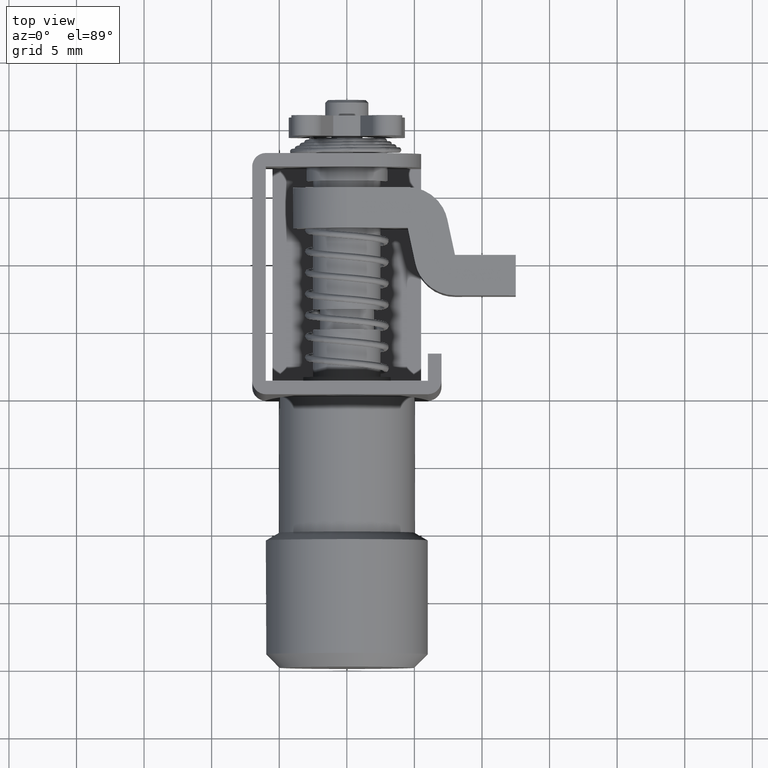
[diagram: clean part render]
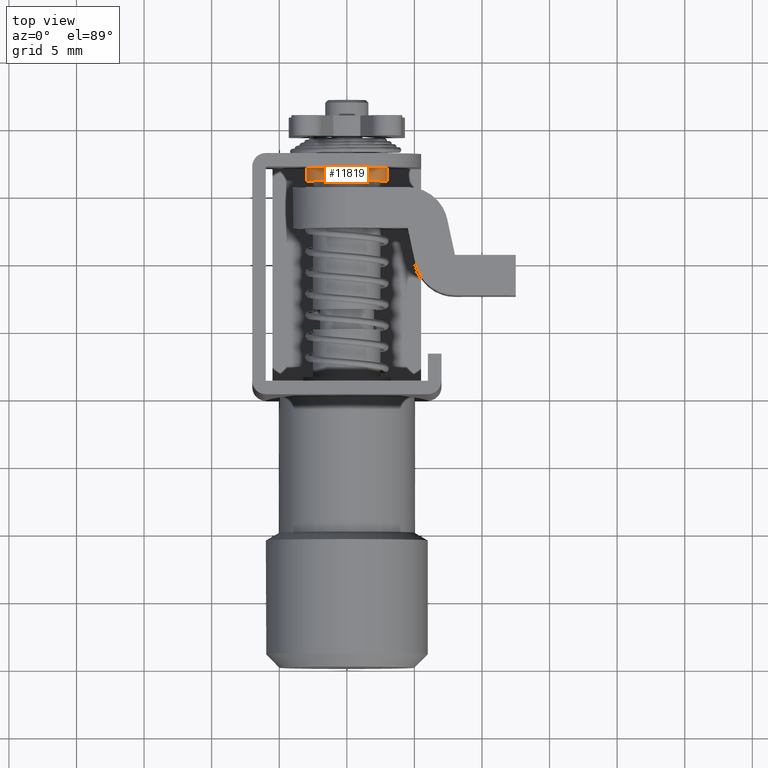
[diagram: same view with one face highlighted and labeled with its STEP entity id]
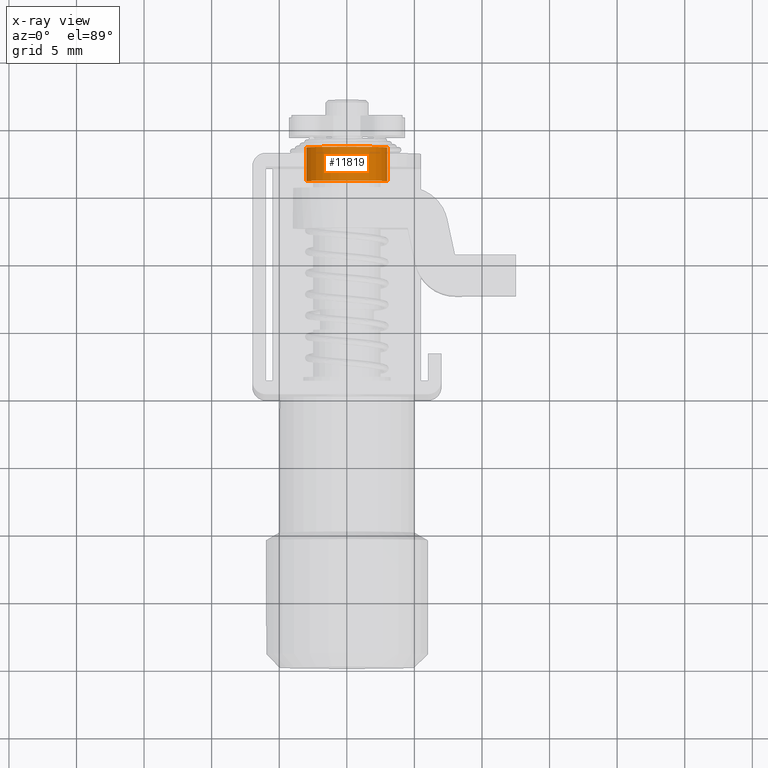
[diagram: x-ray of the same camera — body ghosted, the highlighted face saturated]
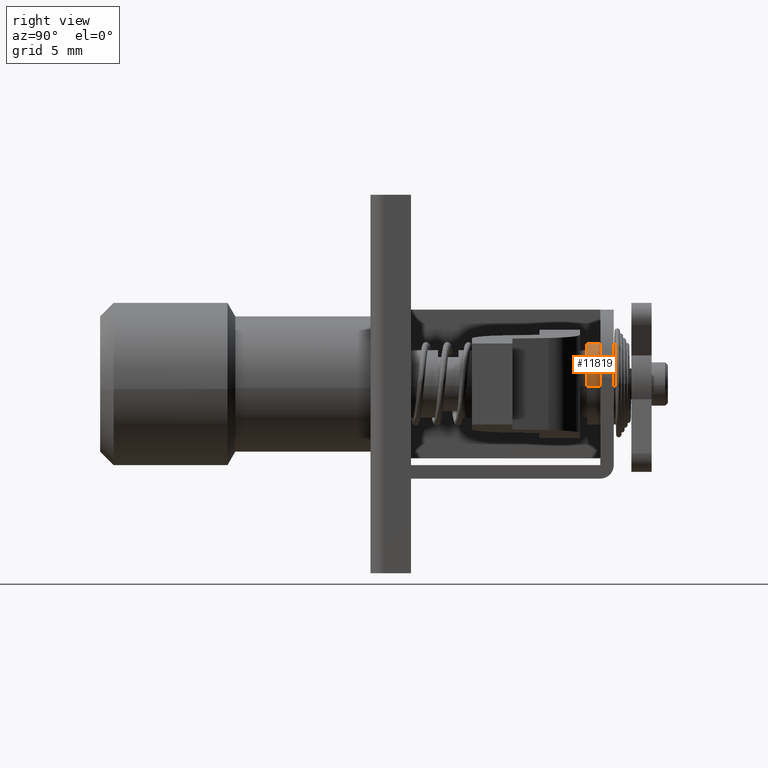
[diagram: same view with one face highlighted and labeled with its STEP entity id]
A machine part, top view. The second image highlights one B-rep face of the part: STEP entity #11819.
The next image is the same camera in x-ray: the body ghosted, the highlighted face saturated — about 0% of this face is hidden behind the body in this view.
A second angle (right view) of the same face is appended — the face is thin or edge-on in the first view.
In plain terms, the highlighted face is a freeform B-spline surface patch.
Its self-contained STEP definition (entity closure, byte-faithful):
#11656=CARTESIAN_POINT('',(16.0,2.979028579088789,0.354102703988869));
#11657=VERTEX_POINT('',#11656);
#11675=CARTESIAN_POINT('',(18.500000000000000,2.979028579088789,0.354102703988869));
#11676=VERTEX_POINT('',#11675);
#11677=CARTESIAN_POINT('',(18.500000000000000,2.979028579088789,0.354102703988869));
#11678=CARTESIAN_POINT('',(16.0,2.979028579088789,0.354102703988869));
#11679=QUASI_UNIFORM_CURVE('',1,(#11677,#11678),.UNSPECIFIED.,.F.,.U.);
#11680=EDGE_CURVE('',#11676,#11657,#11679,.T.);
#11699=CARTESIAN_POINT('',(18.500000000000000,-2.994404395262102,-0.183145618661769));
#11700=VERTEX_POINT('',#11699);
#11714=CARTESIAN_POINT('',(16.0,-2.994404395262102,-0.183145618661769));
#11715=VERTEX_POINT('',#11714);
#11716=CARTESIAN_POINT('',(18.500000000000000,-2.994404395262102,-0.183145618661769));
#11717=CARTESIAN_POINT('',(16.0,-2.994404395262102,-0.183145618661769));
#11718=QUASI_UNIFORM_CURVE('',1,(#11716,#11717),.UNSPECIFIED.,.F.,.U.);
#11719=EDGE_CURVE('',#11700,#11715,#11718,.T.);
#11737=CARTESIAN_POINT('',(18.562500000000000,-2.994404395265600,-0.183145618604571));
#11738=CARTESIAN_POINT('',(18.562500000000000,-3.177550013870171,2.811258776661029));
#11739=CARTESIAN_POINT('',(18.562500000000000,-0.183145618604571,2.994404395265600));
#11740=CARTESIAN_POINT('',(18.562500000000004,2.644630472518504,3.167358590197582));
#11741=CARTESIAN_POINT('',(18.562500000000011,2.979028579091000,0.354102703970275));
#11742=CARTESIAN_POINT('',(15.935937500000000,-2.994404395265600,-0.183145618604571));
#11743=CARTESIAN_POINT('',(15.935937500000001,-3.177550013870171,2.811258776661029));
#11744=CARTESIAN_POINT('',(15.935937500000000,-0.183145618604571,2.994404395265600));
#11745=CARTESIAN_POINT('',(15.935937500000003,2.644630472518504,3.167358590197582));
#11746=CARTESIAN_POINT('',(15.935937500000001,2.979028579091000,0.354102703970275));
#11754=(BOUNDED_SURFACE()B_SPLINE_SURFACE(2,1,((#11737,#11742),(#11738,#11743),(#11739,#11744),(#11740,#11745),(#11741,#11746)),.UNSPECIFIED.,.F.,.F.,.U.)B_SPLINE_SURFACE_WITH_KNOTS((3,2,3),(2,2),(0.0,4.970562748477139,9.742302987015194),(0.0,2.626562500000005),.UNSPECIFIED.)GEOMETRIC_REPRESENTATION_ITEM()RATIONAL_B_SPLINE_SURFACE(((1.0,1.0),(0.707106781186548,0.707106781186548),(1.0,1.0),(0.718822509939086,0.718822509939086),(0.977505800795127,0.977505800795127)))REPRESENTATION_ITEM('')SURFACE());
#11755=CARTESIAN_POINT('',(16.0,0.0,3.0));
#11756=VERTEX_POINT('',#11755);
#11757=CARTESIAN_POINT('',(16.0,0.0,3.0));
#11758=CARTESIAN_POINT('',(16.0,2.664523577820606,3.000000000000000));
#11759=CARTESIAN_POINT('',(16.0,2.979028579088789,0.354102703988869));
#11767=(BOUNDED_CURVE()B_SPLINE_CURVE(2,(#11757,#11758,#11759),.UNSPECIFIED.,.F.,.U.)B_SPLINE_CURVE_WITH_KNOTS((3,3),(0.0,0.229562473513535),.UNSPECIFIED.)CURVE()GEOMETRIC_REPRESENTATION_ITEM()RATIONAL_B_SPLINE_CURVE((1.0,0.731050832855372,0.956026754183751))REPRESENTATION_ITEM(''));
#11768=EDGE_CURVE('',#11756,#11657,#11767,.T.);
#11769=ORIENTED_EDGE('',*,*,#11768,.F.);
#11770=CARTESIAN_POINT('',(16.000000000000004,-2.994404395262102,-0.183145618661769));
#11771=CARTESIAN_POINT('',(16.000000000000007,-3.0,-0.091658289953125));
#11772=CARTESIAN_POINT('',(16.0,-3.0,0.0));
#11773=CARTESIAN_POINT('',(15.999999999999998,-3.0,3.0));
#11774=CARTESIAN_POINT('',(16.0,0.0,3.0));
#11782=(BOUNDED_CURVE()B_SPLINE_CURVE(2,(#11770,#11771,#11772,#11773,#11774),.UNSPECIFIED.,.F.,.U.)B_SPLINE_CURVE_WITH_KNOTS((3,2,3),(0.739332962235376,0.750000000000000,1.0),.UNSPECIFIED.)CURVE()GEOMETRIC_REPRESENTATION_ITEM()RATIONAL_B_SPLINE_CURVE((0.976072041659074,0.987502787895659,1.0,0.707106781186548,1.0))REPRESENTATION_ITEM(''));
#11783=EDGE_CURVE('',#11715,#11756,#11782,.T.);
#11784=ORIENTED_EDGE('',*,*,#11783,.F.);
#11785=ORIENTED_EDGE('',*,*,#11719,.F.);
#11786=CARTESIAN_POINT('',(18.500000000000000,0.0,3.0));
#11787=VERTEX_POINT('',#11786);
#11788=CARTESIAN_POINT('',(18.499999999999996,-2.994404395262102,-0.183145618661769));
#11789=CARTESIAN_POINT('',(18.500000000000000,-3.0,-0.091658289953125));
#11790=CARTESIAN_POINT('',(18.500000000000000,-3.0,0.0));
#11791=CARTESIAN_POINT('',(18.500000000000000,-3.0,3.0));
#11792=CARTESIAN_POINT('',(18.500000000000000,0.0,3.0));
#11800=(BOUNDED_CURVE()B_SPLINE_CURVE(2,(#11788,#11789,#11790,#11791,#11792),.UNSPECIFIED.,.F.,.U.)B_SPLINE_CURVE_WITH_KNOTS((3,2,3),(0.739332962235376,0.750000000000000,1.0),.UNSPECIFIED.)CURVE()GEOMETRIC_REPRESENTATION_ITEM()RATIONAL_B_SPLINE_CURVE((0.976072041659074,0.987502787895659,1.0,0.707106781186548,1.0))REPRESENTATION_ITEM(''));
#11801=EDGE_CURVE('',#11700,#11787,#11800,.T.);
#11802=ORIENTED_EDGE('',*,*,#11801,.T.);
#11803=CARTESIAN_POINT('',(18.500000000000000,0.0,3.0));
#11804=CARTESIAN_POINT('',(18.500000000000000,2.664523577820606,3.000000000000000));
#11805=CARTESIAN_POINT('',(18.500000000000004,2.979028579088789,0.354102703988869));
#11813=(BOUNDED_CURVE()B_SPLINE_CURVE(2,(#11803,#11804,#11805),.UNSPECIFIED.,.F.,.U.)B_SPLINE_CURVE_WITH_KNOTS((3,3),(0.0,0.229562473513535),.UNSPECIFIED.)CURVE()GEOMETRIC_REPRESENTATION_ITEM()RATIONAL_B_SPLINE_CURVE((1.0,0.731050832855372,0.956026754183751))REPRESENTATION_ITEM(''));
#11814=EDGE_CURVE('',#11787,#11676,#11813,.T.);
#11815=ORIENTED_EDGE('',*,*,#11814,.T.);
#11816=ORIENTED_EDGE('',*,*,#11680,.T.);
#11817=EDGE_LOOP('',(#11769,#11784,#11785,#11802,#11815,#11816));
#11818=FACE_OUTER_BOUND('',#11817,.T.);
#11819=ADVANCED_FACE('',(#11818),#11754,.T.);